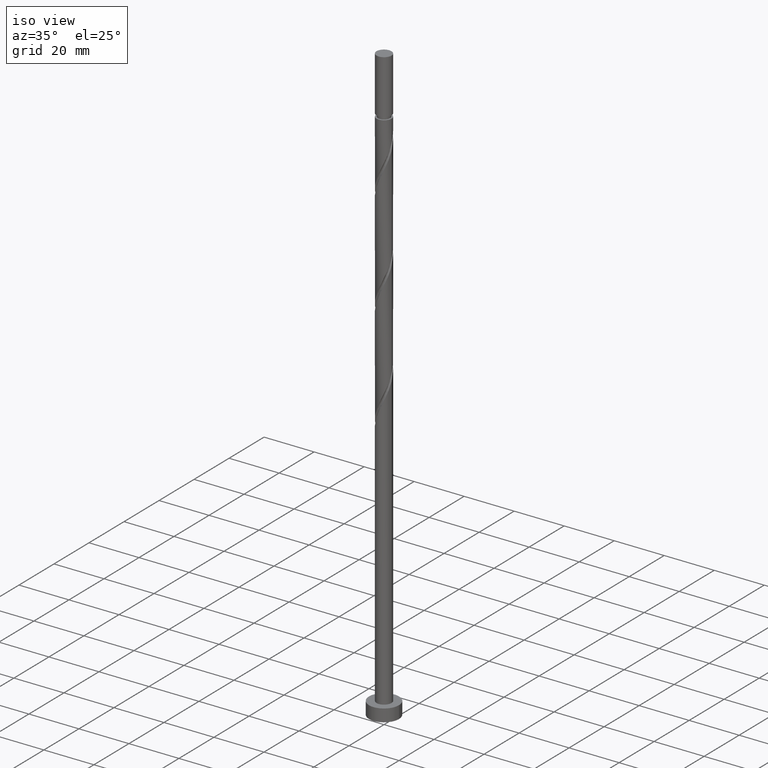
[diagram: clean part render]
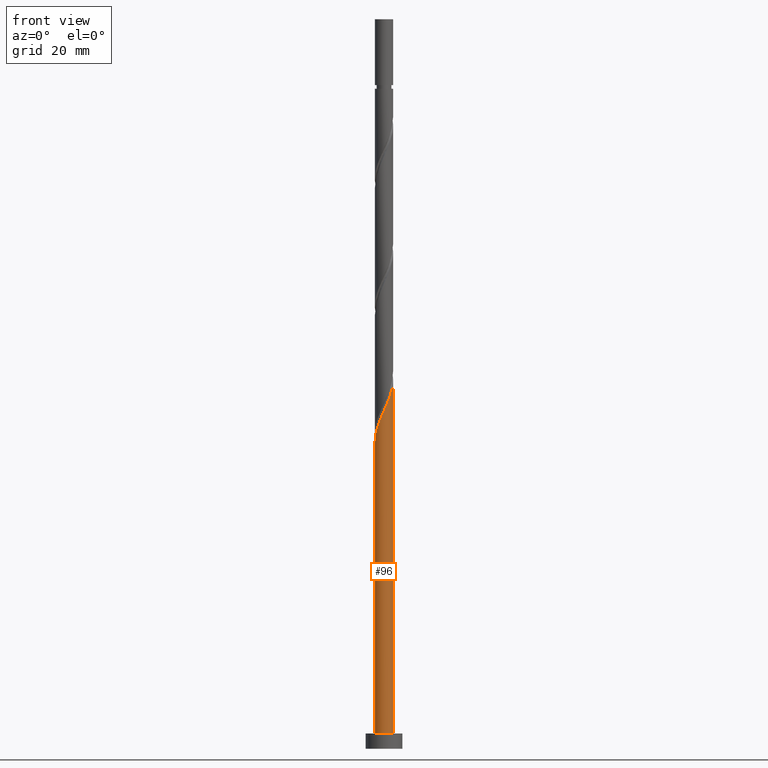
[diagram: tour spotlight — one face highlighted and labeled with its STEP entity id]
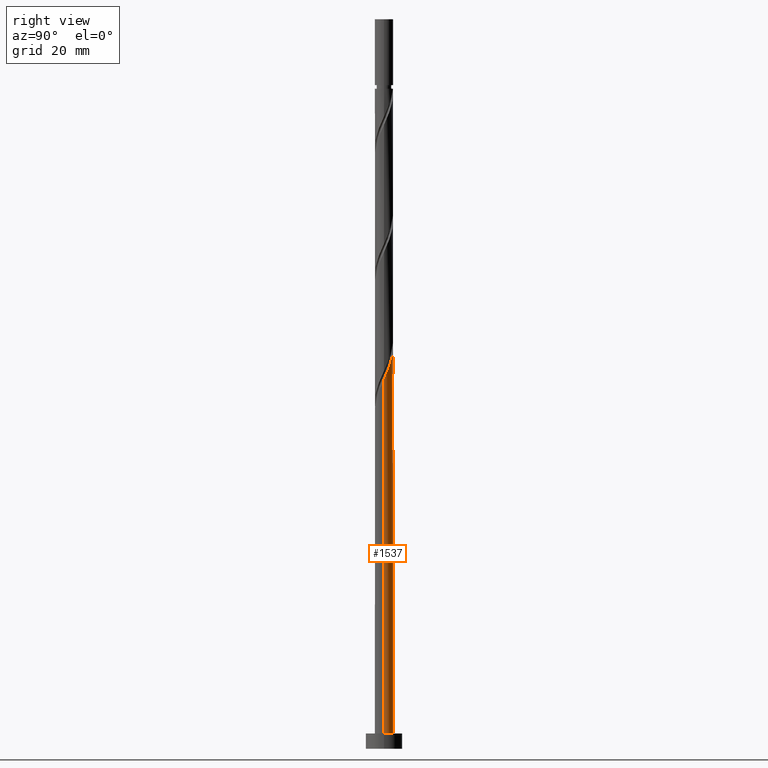
[diagram: tour spotlight — one face highlighted and labeled with its STEP entity id]
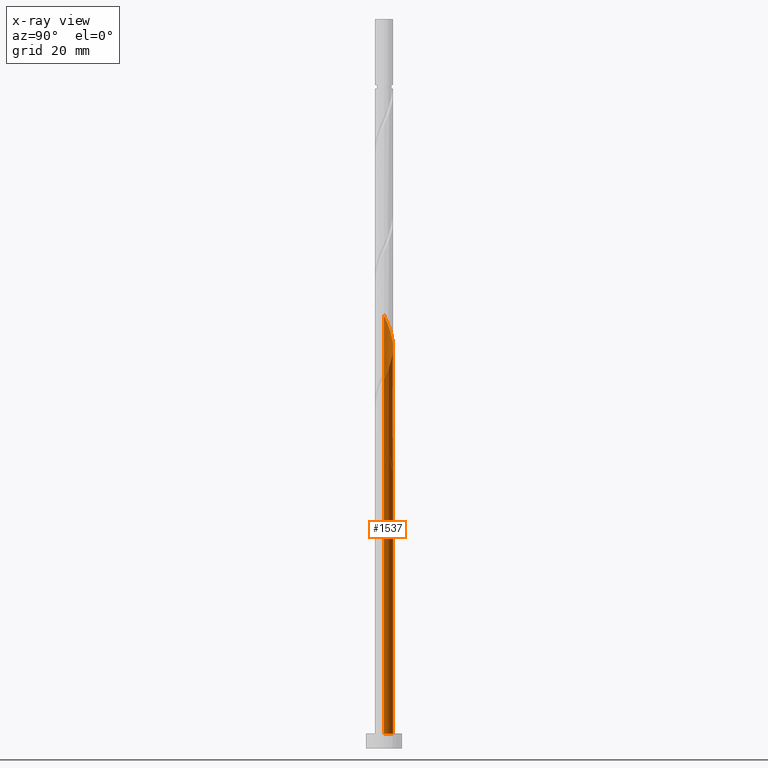
[diagram: x-ray of the same camera — body ghosted, this tour face saturated]
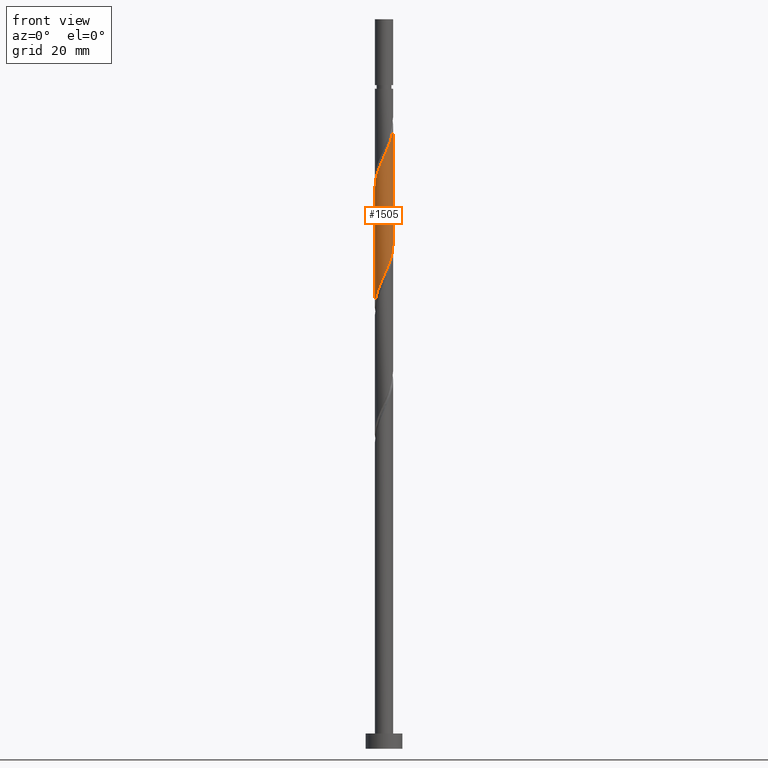
[diagram: tour spotlight — one face highlighted and labeled with its STEP entity id]
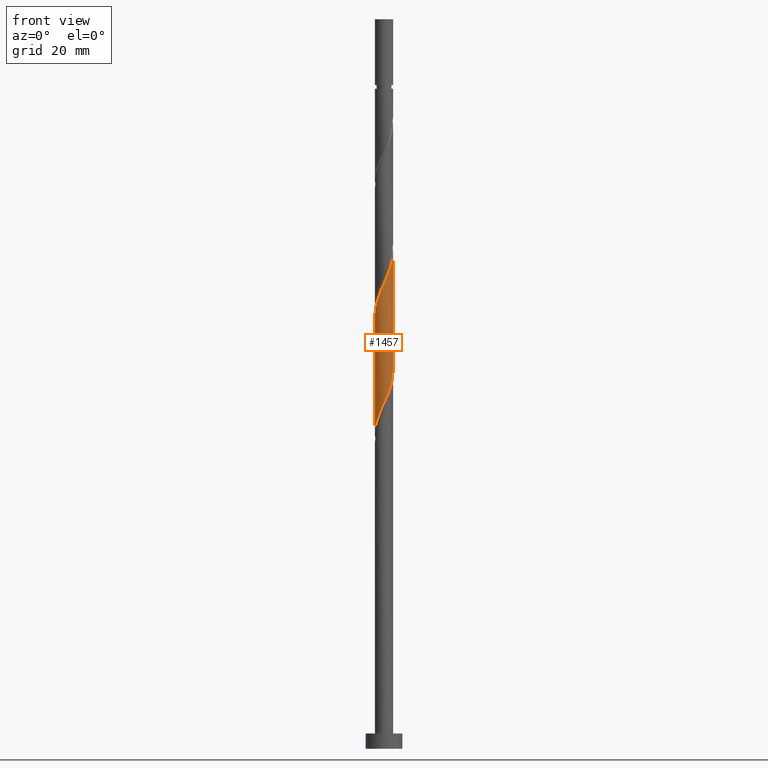
[diagram: tour spotlight — one face highlighted and labeled with its STEP entity id]
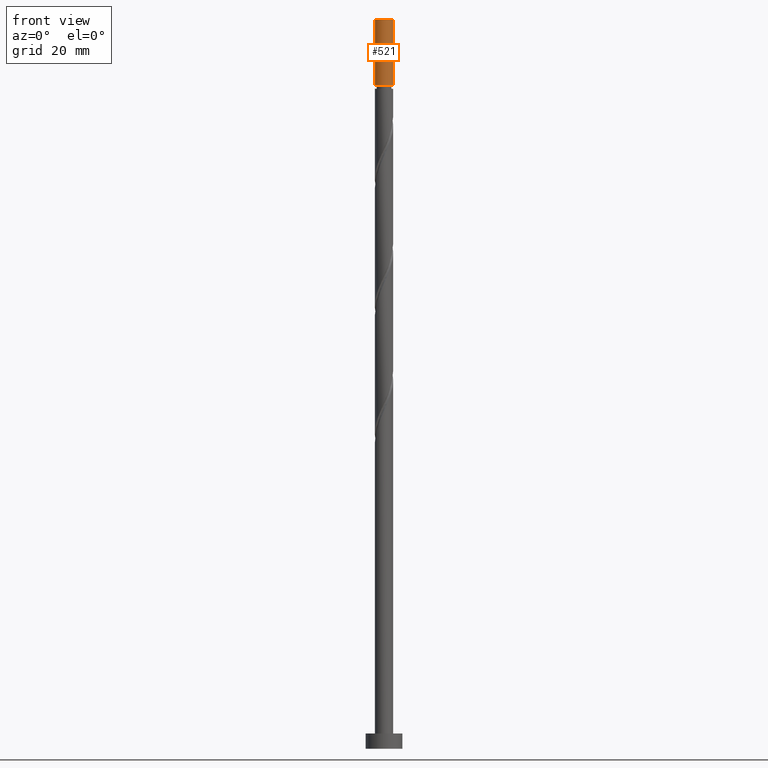
[diagram: tour spotlight — one face highlighted and labeled with its STEP entity id]
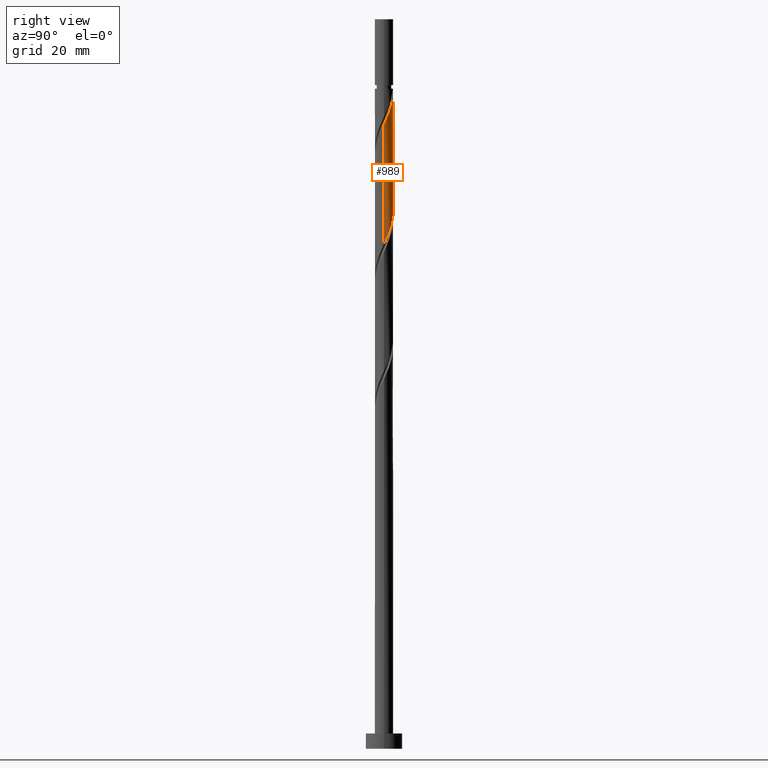
[diagram: tour spotlight — one face highlighted and labeled with its STEP entity id]
A machine part: a face-by-face anatomy tour. The part has 21 B-rep faces; the first image is the clean iso view, then the 6 largest visible faces are spotlighted one at a time (largest first), each with its STEP entity span.

Face 1 — front view, entity #96. In plain terms, the highlighted cylindrical surface (edge-blend (fillet) strip) has radius 3 mm, axis along (-0, -0, -1).
Definition (entity closure, byte-faithful):
#19 = CARTESIAN_POINT ( 'NONE',  ( -2.342886767063572240, -1.908814102736323681, 104.8262157334918925 ) ) ;
#43 = EDGE_CURVE ( 'NONE', #968, #911, #1792, .T. ) ;
#96 = ADVANCED_FACE ( 'NONE', ( #1783 ), #1767, .T. ) ;
#146 = CARTESIAN_POINT ( 'NONE',  ( 0.5969924622639735112, -2.940000000000005276, 112.0377541950303737 ) ) ;
#156 = CARTESIAN_POINT ( 'NONE',  ( 1.283232999305656596, -2.711699295551230460, 113.6403182975944333 ) ) ;
#164 = CARTESIAN_POINT ( 'NONE',  ( -0.8376755528275002805, -2.880676946169974606, 108.8326259899021835 ) ) ;
#172 = CARTESIAN_POINT ( 'NONE',  ( 2.960644198141486605, -0.4843407189274823166, 120.0505747078508563 ) ) ;
#195 = ORIENTED_EDGE ( 'NONE', *, *, #1403, .T. ) ;
#221 = CARTESIAN_POINT ( 'NONE',  ( -3.000000000000005329, 6.834863909711972763E-15, 100.2931656524717852 ) ) ;
#235 = CARTESIAN_POINT ( 'NONE',  ( 0.000000000000000000, 0.000000000000000000, 239.0000000000000284 ) ) ;
#294 = VERTEX_POINT ( 'NONE', #439 ) ;
#319 = CARTESIAN_POINT ( 'NONE',  ( -2.731615850633953624, -1.292657931028938112, 103.2236516309277619 ) ) ;
#418 = CARTESIAN_POINT ( 'NONE',  ( 2.615571287713477577, -1.513762372691147329, 117.6467285540046959 ) ) ;
#439 = CARTESIAN_POINT ( 'NONE',  ( 3.000000000000000444, 3.673940397442060361E-16, 5.000000000000000000 ) ) ;
#449 = AXIS2_PLACEMENT_3D ( 'NONE', #235, #1238, #1061 ) ;
#500 = CARTESIAN_POINT ( 'NONE',  ( 0.000000000000000000, 0.000000000000000000, 5.000000000000000000 ) ) ;
#569 = CARTESIAN_POINT ( 'NONE',  ( 0.9539730929374196089, -2.867511991263171911, 112.8390362463124177 ) ) ;
#578 = CARTESIAN_POINT ( 'NONE',  ( -0.1239431067051856017, -2.997438590913965140, 110.4351900924662431 ) ) ;
#586 = CARTESIAN_POINT ( 'NONE',  ( 2.396435889809655162, -1.804742371096837550, 116.8454465027226519 ) ) ;
#598 = EDGE_LOOP ( 'NONE', ( #1623, #1132, #936, #195 ) ) ;
#720 = CARTESIAN_POINT ( 'NONE',  ( 3.000000000000005329, -0.2437693156111322701, 120.5867982484568159 ) ) ;
#739 = CARTESIAN_POINT ( 'NONE',  ( -2.846604600309532884, -0.9470175550097441608, 102.4223695796457463 ) ) ;
#748 = CARTESIAN_POINT ( 'NONE',  ( 3.000000000000004885, 1.136651328529780996E-15, 121.1264989858051422 ) ) ;
#810 = VECTOR ( 'NONE', #1450, 1000.000000000000000 ) ;
#840 = EDGE_CURVE ( 'NONE', #1385, #294, #1039, .T. ) ;
#858 = CARTESIAN_POINT ( 'NONE',  ( -2.537251308848762488, -1.600736016882631008, 104.0249336822098627 ) ) ;
#867 = CARTESIAN_POINT ( 'NONE',  ( -2.080442193850960297, -2.161425519892979263, 105.6274977847739507 ) ) ;
#876 = CARTESIAN_POINT ( 'NONE',  ( -1.187453060654103387, -2.778964719248856241, 108.0313439386201111 ) ) ;
#883 = CARTESIAN_POINT ( 'NONE',  ( 2.901834587494014350, -0.8438280090813018441, 119.2492926565688123 ) ) ;
#892 = CARTESIAN_POINT ( 'NONE',  ( -3.000000000000000444, 0.000000000000000000, 5.000000000000000000 ) ) ;
#911 = VERTEX_POINT ( 'NONE', #892 ) ;
#936 = ORIENTED_EDGE ( 'NONE', *, *, #43, .T. ) ;
#958 = AXIS2_PLACEMENT_3D ( 'NONE', #500, #1639, #1624 ) ;
#968 = VERTEX_POINT ( 'NONE', #221 ) ;
#988 = VECTOR ( 'NONE', #1518, 1000.000000000000000 ) ;
#1039 = LINE ( 'NONE', #1606, #810 ) ;
#1061 = DIRECTION ( 'NONE',  ( -1.000000000000000000, 0.000000000000000000, 0.000000000000000000 ) ) ;
#1127 = CARTESIAN_POINT ( 'NONE',  ( -3.000000000000005329, 6.834863909711972763E-15, 100.2931656524717710 ) ) ;
#1132 = ORIENTED_EDGE ( 'NONE', *, *, #1227, .F. ) ;
#1139 = CARTESIAN_POINT ( 'NONE',  ( 1.612492905673893029, -2.555886599839287232, 114.4416003488765199 ) ) ;
#1158 = CARTESIAN_POINT ( 'NONE',  ( 0.2400118315905258592, -3.012488008736836864, 111.2364721437482871 ) ) ;
#1227 = EDGE_CURVE ( 'NONE', #968, #1385, #1247, .T. ) ;
#1238 = DIRECTION ( 'NONE',  ( -0.000000000000000000, -0.000000000000000000, -1.000000000000000000 ) ) ;
#1247 =( BOUNDED_CURVE ( )  B_SPLINE_CURVE ( 2, ( #1127, #1578, #1432, #1596, #739, #319, #858, #19, #867, #1440, #1568, #876, #164, #1456, #578, #1158, #146, #569, #156, #1139, #1585, #1448, #586, #418, #1722, #883, #172, #720, #748 ),
 .UNSPECIFIED., .F., .T. ) 
 B_SPLINE_CURVE_WITH_KNOTS ( ( 3, 2, 2, 2, 2, 2, 2, 2, 2, 2, 2, 2, 2, 2, 3 ),
 ( 0.05452716259738322330, 0.05769230769230770939, 0.06730769230769229061, 0.07692307692307687184, 0.08653846153846156408, 0.09615384615384614531, 0.1057692307692307265, 0.1153846153846154188, 0.1250000000000000000, 0.1346153846153845812, 0.1442307692307692735, 0.1538461538461538547, 0.1634615384615384359, 0.1730769230769231282, 0.1795271625973834384 ),
 .UNSPECIFIED. ) 
 CURVE ( )  GEOMETRIC_REPRESENTATION_ITEM ( )  RATIONAL_B_SPLINE_CURVE ( ( 0.9061636035682887336, 0.9069090390690774939, 0.9090909090909340406, 0.9024626128164375816, 0.9090909090909340406, 0.9024626128164375816, 0.9090909090909340406, 0.9024626128164375816, 0.9090909090909340406, 0.9024626128164375816, 0.9090909090909340406, 0.9024626128164375816, 0.9090909090909340406, 0.9024626128164375816, 0.9090909090909340406, 0.9024626128164375816, 0.9090909090909340406, 0.9024626128164375816, 0.9090909090909340406, 0.9024626128164375816, 0.9090909090909340406, 0.9024626128164375816, 0.9090909090909340406, 0.9024626128164375816, 0.9090909090909340406, 0.9024626128164375816, 0.9090909090909340406, 0.9046444828382940173, 0.9061636035682889556 ) ) 
 REPRESENTATION_ITEM ( '' )  );
#1331 = CARTESIAN_POINT ( 'NONE',  ( 3.000000000000004885, 1.136651328529780996E-15, 121.1264989858051422 ) ) ;
#1378 = CARTESIAN_POINT ( 'NONE',  ( -3.000000000000000444, 0.000000000000000000, 239.0000000000000284 ) ) ;
#1385 = VERTEX_POINT ( 'NONE', #1331 ) ;
#1403 = EDGE_CURVE ( 'NONE', #911, #294, #1498, .T. ) ;
#1432 = CARTESIAN_POINT ( 'NONE',  ( -2.990523579387033948, -0.2382618751084434883, 100.8198054770816299 ) ) ;
#1440 = CARTESIAN_POINT ( 'NONE',  ( -1.817997620638349909, -2.414036937049632403, 106.4287798360559805 ) ) ;
#1448 = CARTESIAN_POINT ( 'NONE',  ( 2.177300491905832747, -2.095722369502527993, 116.0441644514406221 ) ) ;
#1450 = DIRECTION ( 'NONE',  ( -0.000000000000000000, -0.000000000000000000, -1.000000000000000000 ) ) ;
#1456 = CARTESIAN_POINT ( 'NONE',  ( -0.4878980450008971737, -2.982389173091093859, 109.6339080411841707 ) ) ;
#1498 = CIRCLE ( 'NONE', #958, 3.000000000000000444 ) ;
#1518 = DIRECTION ( 'NONE',  ( -0.000000000000000000, -0.000000000000000000, -1.000000000000000000 ) ) ;
#1568 = CARTESIAN_POINT ( 'NONE',  ( -1.502725340646227314, -2.596500828149243656, 107.2300618873380387 ) ) ;
#1578 = CARTESIAN_POINT ( 'NONE',  ( -3.000000000000005329, -0.1193193910103015065, 100.5573365681047733 ) ) ;
#1585 = CARTESIAN_POINT ( 'NONE',  ( 1.894896698789863443, -2.325804484670908501, 115.2428824001585497 ) ) ;
#1596 = CARTESIAN_POINT ( 'NONE',  ( -2.961593349985112145, -0.6013771789905506537, 101.6210875283636881 ) ) ;
#1606 = CARTESIAN_POINT ( 'NONE',  ( 3.000000000000000444, 3.673940397442060361E-16, 239.0000000000000284 ) ) ;
#1623 = ORIENTED_EDGE ( 'NONE', *, *, #840, .F. ) ;
#1624 = DIRECTION ( 'NONE',  ( 1.000000000000000000, 0.000000000000000000, 0.000000000000000000 ) ) ;
#1639 = DIRECTION ( 'NONE',  ( 0.000000000000000000, 0.000000000000000000, 1.000000000000000000 ) ) ;
#1722 = CARTESIAN_POINT ( 'NONE',  ( 2.758702937603747074, -1.178795190886223754, 118.4480106052867399 ) ) ;
#1767 = CYLINDRICAL_SURFACE ( 'NONE', #449, 3.000000000000000444 ) ;
#1783 = FACE_OUTER_BOUND ( 'NONE', #598, .T. ) ;
#1792 = LINE ( 'NONE', #1378, #988 ) ;

Face 2 — right view, entity #1537. An x-ray twin of the same camera follows (body ghosted, this face saturated) — the face is partly hidden behind the body. In plain terms, the highlighted cylindrical surface (edge-blend (fillet) strip) has radius 3 mm, axis along (-0, -0, -1).
Definition (entity closure, byte-faithful):
#23 = CARTESIAN_POINT ( 'NONE',  ( -3.000000000000004441, 0.2437693156111404302, 99.75346491512348734 ) ) ;
#43 = EDGE_CURVE ( 'NONE', #968, #911, #1792, .T. ) ;
#47 = CARTESIAN_POINT ( 'NONE',  ( 2.080442193850960741, 2.161425519892978375, 126.4608311181072651 ) ) ;
#54 = CARTESIAN_POINT ( 'NONE',  ( -2.990523579387028619, 0.2382618751084444875, 102.4223695796457037 ) ) ;
#63 = CARTESIAN_POINT ( 'NONE',  ( -2.731615850633949183, 1.292657931028937224, 100.0185234257995717 ) ) ;
#72 = CARTESIAN_POINT ( 'NONE',  ( -1.502725340646223096, 2.596500828149240103, 96.01211316938930906 ) ) ;
#160 = CARTESIAN_POINT ( 'NONE',  ( -2.960644198141485717, 0.4843407189274820390, 99.21724137451754189 ) ) ;
#202 = CARTESIAN_POINT ( 'NONE',  ( 1.187453060654103831, 2.778964719248856241, 128.8646772719534113 ) ) ;
#211 = CARTESIAN_POINT ( 'NONE',  ( 0.2400118315905273025, 3.012488008736832867, 92.00570291297907488 ) ) ;
#221 = CARTESIAN_POINT ( 'NONE',  ( -3.000000000000005329, 6.834863909711972763E-15, 100.2931656524717852 ) ) ;
#241 = ORIENTED_EDGE ( 'NONE', *, *, #794, .T. ) ;
#274 = CIRCLE ( 'NONE', #1108, 3.000000000000000444 ) ;
#294 = VERTEX_POINT ( 'NONE', #439 ) ;
#305 = CARTESIAN_POINT ( 'NONE',  ( -2.615571287713478021, 1.513762372691146441, 96.81339522067135306 ) ) ;
#331 = CARTESIAN_POINT ( 'NONE',  ( -2.901834587494014794, 0.8438280090813001788, 140.0826259899020840 ) ) ;
#333 = CARTESIAN_POINT ( 'NONE',  ( -3.000000000000005329, 6.834863909711972763E-15, 100.2931656524717710 ) ) ;
#338 = CARTESIAN_POINT ( 'NONE',  ( 2.846604600309534217, 0.9470175550097427175, 123.2557029129790465 ) ) ;
#346 = CARTESIAN_POINT ( 'NONE',  ( 1.817997620638351242, 2.414036937049631959, 127.2621131693893091 ) ) ;
#350 = EDGE_CURVE ( 'NONE', #1638, #968, #649, .T. ) ;
#355 = CARTESIAN_POINT ( 'NONE',  ( -1.283232999305656818, 2.711699295551230016, 134.4736516309278045 ) ) ;
#364 = CARTESIAN_POINT ( 'NONE',  ( 3.000000000000004885, 1.136651328529780996E-15, 121.1264989858051422 ) ) ;
#387 = DIRECTION ( 'NONE',  ( -1.000000000000000000, 0.000000000000000000, 0.000000000000000000 ) ) ;
#437 = DIRECTION ( 'NONE',  ( 0.000000000000000000, -0.000000000000000000, -1.000000000000000000 ) ) ;
#439 = CARTESIAN_POINT ( 'NONE',  ( 3.000000000000000444, 3.673940397442060361E-16, 5.000000000000000000 ) ) ;
#461 = ORIENTED_EDGE ( 'NONE', *, *, #43, .F. ) ;
#463 = CARTESIAN_POINT ( 'NONE',  ( 0.5969924622639739553, 2.939999999999999503, 91.20442086169700247 ) ) ;
#491 = ORIENTED_EDGE ( 'NONE', *, *, #893, .F. ) ;
#493 = CARTESIAN_POINT ( 'NONE',  ( -0.8376755528274979490, 2.880676946169971497, 94.40954906682519265 ) ) ;
#502 = CARTESIAN_POINT ( 'NONE',  ( 2.731615850633953624, 1.292657931028937224, 124.0569849642611047 ) ) ;
#511 = CARTESIAN_POINT ( 'NONE',  ( 1.502725340646227759, 2.596500828149243656, 128.0633952206713957 ) ) ;
#539 = CARTESIAN_POINT ( 'NONE',  ( -0.5969924622639729561, 2.940000000000004832, 91.20442086169700247 ) ) ;
#602 = EDGE_CURVE ( 'NONE', #294, #911, #783, .T. ) ;
#607 = LINE ( 'NONE', #1611, #1199 ) ;
#617 = CARTESIAN_POINT ( 'NONE',  ( -2.615571287713478021, 1.513762372691146441, 138.4800618873380245 ) ) ;
#626 = CARTESIAN_POINT ( 'NONE',  ( -0.2400118315905254429, 3.012488008736836864, 132.0698054770816441 ) ) ;
#636 = CARTESIAN_POINT ( 'NONE',  ( -2.342886767063568687, 1.908814102736322127, 98.41595932323546947 ) ) ;
#645 = CARTESIAN_POINT ( 'NONE',  ( -2.396435889809656050, 1.804742371096836884, 137.6787798360560373 ) ) ;
#649 =( BOUNDED_CURVE ( )  B_SPLINE_CURVE ( 2, ( #1144, #1013, #1452, #744, #1582, #1573, #1608, #305, #871, #1445, #160, #23, #333 ),
 .UNSPECIFIED., .F., .T. ) 
 B_SPLINE_CURVE_WITH_KNOTS ( ( 3, 2, 2, 2, 2, 2, 3 ),
 ( 0.000000000000000000, 0.009615384615384581224, 0.01923076923076927347, 0.02884615384615385469, 0.03846153846153843592, 0.04807692307692312816, 0.05452716259738322330 ),
 .UNSPECIFIED. ) 
 CURVE ( )  GEOMETRIC_REPRESENTATION_ITEM ( )  RATIONAL_B_SPLINE_CURVE ( ( 0.9090909090909340406, 0.9024626128164375816, 0.9090909090909340406, 0.9024626128164375816, 0.9090909090909340406, 0.9024626128164375816, 0.9090909090909340406, 0.9024626128164375816, 0.9090909090909340406, 0.9024626128164375816, 0.9090909090909340406, 0.9046444828382941283, 0.9061636035682887336 ) ) 
 REPRESENTATION_ITEM ( '' )  );
#650 = ORIENTED_EDGE ( 'NONE', *, *, #1285, .F. ) ;
#653 = CARTESIAN_POINT ( 'NONE',  ( 2.961593349985112145, 0.6013771789905504317, 122.4544208616970025 ) ) ;
#656 = VERTEX_POINT ( 'NONE', #860 ) ;
#744 = CARTESIAN_POINT ( 'NONE',  ( -1.612492905673894583, 2.555886599839287232, 93.60826701554316287 ) ) ;
#750 = CARTESIAN_POINT ( 'NONE',  ( 0.000000000000000000, 0.000000000000000000, 91.20442086169700247 ) ) ;
#758 = CARTESIAN_POINT ( 'NONE',  ( -0.5969924622639729561, 2.940000000000005276, 132.8710875283637165 ) ) ;
#768 = CARTESIAN_POINT ( 'NONE',  ( -2.999999999999999556, 0.1193193910103105826, 102.6848384886225602 ) ) ;
#777 = CARTESIAN_POINT ( 'NONE',  ( -0.9539730929374202750, 2.867511991263171911, 133.6723695796457321 ) ) ;
#783 = CIRCLE ( 'NONE', #1556, 3.000000000000000444 ) ;
#785 = CARTESIAN_POINT ( 'NONE',  ( -1.612492905673894583, 2.555886599839287232, 135.2749336822098201 ) ) ;
#794 = EDGE_CURVE ( 'NONE', #1638, #1356, #274, .T. ) ;
#810 = VECTOR ( 'NONE', #1450, 1000.000000000000000 ) ;
#840 = EDGE_CURVE ( 'NONE', #1385, #294, #1039, .T. ) ;
#860 = CARTESIAN_POINT ( 'NONE',  ( -3.000000000000000888, 1.105243857609885923E-14, 102.9490094042555057 ) ) ;
#869 = DIRECTION ( 'NONE',  ( -1.000000000000000000, 0.000000000000000000, 0.000000000000000000 ) ) ;
#871 = CARTESIAN_POINT ( 'NONE',  ( -2.758702937603747074, 1.178795190886223754, 97.61467727195342547 ) ) ;
#892 = CARTESIAN_POINT ( 'NONE',  ( -3.000000000000000444, 0.000000000000000000, 5.000000000000000000 ) ) ;
#893 = EDGE_CURVE ( 'NONE', #1385, #1355, #1306, .T. ) ;
#902 = EDGE_LOOP ( 'NONE', ( #491, #1569, #1131, #461, #1106, #241, #1747, #650 ) ) ;
#904 = CARTESIAN_POINT ( 'NONE',  ( -2.537251308848757603, 1.600736016882629231, 99.21724137451748504 ) ) ;
#911 = VERTEX_POINT ( 'NONE', #892 ) ;
#921 = CARTESIAN_POINT ( 'NONE',  ( 0.4878980450008973957, 2.982389173091093859, 130.4672413745175277 ) ) ;
#931 = CARTESIAN_POINT ( 'NONE',  ( 0.5969924622639739553, 2.939999999999999503, 91.20442086169700247 ) ) ;
#951 = EDGE_CURVE ( 'NONE', #656, #1356, #1032, .T. ) ;
#968 = VERTEX_POINT ( 'NONE', #221 ) ;
#988 = VECTOR ( 'NONE', #1518, 1000.000000000000000 ) ;
#992 = DIRECTION ( 'NONE',  ( 0.000000000000000000, 0.000000000000000000, 1.000000000000000000 ) ) ;
#1013 = CARTESIAN_POINT ( 'NONE',  ( -0.9539730929374202750, 2.867511991263171911, 92.00570291297906067 ) ) ;
#1032 =( BOUNDED_CURVE ( )  B_SPLINE_CURVE ( 2, ( #1752, #768, #54, #1770, #1496, #63, #904, #636, #1056, #1626, #72, #1204, #493, #1635, #1073, #211, #931 ),
 .UNSPECIFIED., .F., .T. ) 
 B_SPLINE_CURVE_WITH_KNOTS ( ( 3, 2, 2, 2, 2, 2, 2, 2, 3 ),
 ( 0.9295271625973834384, 0.9326923076923077094, 0.9423076923076922906, 0.9519230769230768718, 0.9615384615384615641, 0.9711538461538461453, 0.9807692307692307265, 0.9903846153846154188, 1.000000000000000000 ),
 .UNSPECIFIED. ) 
 CURVE ( )  GEOMETRIC_REPRESENTATION_ITEM ( )  RATIONAL_B_SPLINE_CURVE ( ( 0.9061636035682835155, 0.9069090390690721648, 0.9090909090909286006, 0.9024626128164319194, 0.9090909090909286006, 0.9024626128164319194, 0.9090909090909286006, 0.9024626128164319194, 0.9090909090909286006, 0.9024626128164319194, 0.9090909090909286006, 0.9024626128164319194, 0.9090909090909286006, 0.9024626128164319194, 0.9090909090909286006, 0.9024626128164319194, 0.9090909090909286006 ) ) 
 REPRESENTATION_ITEM ( '' )  );
#1039 = LINE ( 'NONE', #1606, #810 ) ;
#1044 = CARTESIAN_POINT ( 'NONE',  ( -3.000000000000005329, -1.555417607461805698E-15, 141.9598323191384850 ) ) ;
#1056 = CARTESIAN_POINT ( 'NONE',  ( -2.080442193850956301, 2.161425519892975711, 97.61467727195341126 ) ) ;
#1064 = CARTESIAN_POINT ( 'NONE',  ( 2.342886767063572240, 1.908814102736323015, 125.6595490668252211 ) ) ;
#1073 = CARTESIAN_POINT ( 'NONE',  ( -0.1239431067051839225, 2.997438590913960699, 92.80698496426107624 ) ) ;
#1098 = FACE_OUTER_BOUND ( 'NONE', #902, .T. ) ;
#1106 = ORIENTED_EDGE ( 'NONE', *, *, #350, .F. ) ;
#1108 = AXIS2_PLACEMENT_3D ( 'NONE', #750, #437, #869 ) ;
#1131 = ORIENTED_EDGE ( 'NONE', *, *, #602, .T. ) ;
#1144 = CARTESIAN_POINT ( 'NONE',  ( -0.5969924622639729561, 2.940000000000004832, 91.20442086169700247 ) ) ;
#1196 = CARTESIAN_POINT ( 'NONE',  ( -2.758702937603747074, 1.178795190886223754, 139.2813439386200685 ) ) ;
#1199 = VECTOR ( 'NONE', #1502, 1000.000000000000000 ) ;
#1204 = CARTESIAN_POINT ( 'NONE',  ( -1.187453060654100945, 2.778964719248853132, 95.21083111810726507 ) ) ;
#1213 = CARTESIAN_POINT ( 'NONE',  ( -1.894896698789863443, 2.325804484670908501, 136.0762157334918925 ) ) ;
#1220 = CARTESIAN_POINT ( 'NONE',  ( -2.177300491905833191, 2.095722369502527993, 136.8774977847739365 ) ) ;
#1248 = CARTESIAN_POINT ( 'NONE',  ( 0.000000000000000000, 0.000000000000000000, 239.0000000000000284 ) ) ;
#1285 = EDGE_CURVE ( 'NONE', #1355, #656, #607, .T. ) ;
#1306 =( BOUNDED_CURVE ( )  B_SPLINE_CURVE ( 2, ( #364, #1466, #1504, #653, #338, #502, #1342, #1064, #47, #346, #511, #202, #1615, #921, #1478, #626, #758, #777, #355, #785, #1213, #1220, #645, #617, #1196, #331, #1333, #1777, #1326 ),
 .UNSPECIFIED., .F., .T. ) 
 B_SPLINE_CURVE_WITH_KNOTS ( ( 3, 2, 2, 2, 2, 2, 2, 2, 2, 2, 2, 2, 2, 2, 3 ),
 ( 0.1795271625973834384, 0.1826923076923077094, 0.1923076923076922906, 0.2019230769230768718, 0.2115384615384615641, 0.2211538461538461453, 0.2307692307692307265, 0.2403846153846154188, 0.2500000000000000000, 0.2596153846153845812, 0.2692307692307692735, 0.2788461538461538547, 0.2884615384615384359, 0.2980769230769231282, 0.3045271625973834939 ),
 .UNSPECIFIED. ) 
 CURVE ( )  GEOMETRIC_REPRESENTATION_ITEM ( )  RATIONAL_B_SPLINE_CURVE ( ( 0.9061636035682889556, 0.9069090390690774939, 0.9090909090909340406, 0.9024626128164375816, 0.9090909090909340406, 0.9024626128164375816, 0.9090909090909340406, 0.9024626128164375816, 0.9090909090909340406, 0.9024626128164375816, 0.9090909090909340406, 0.9024626128164375816, 0.9090909090909340406, 0.9024626128164375816, 0.9090909090909340406, 0.9024626128164375816, 0.9090909090909340406, 0.9024626128164375816, 0.9090909090909340406, 0.9024626128164375816, 0.9090909090909340406, 0.9024626128164375816, 0.9090909090909340406, 0.9024626128164375816, 0.9090909090909340406, 0.9024626128164375816, 0.9090909090909340406, 0.9046444828382939063, 0.9061636035682889556 ) ) 
 REPRESENTATION_ITEM ( '' )  );
#1326 = CARTESIAN_POINT ( 'NONE',  ( -3.000000000000005329, -1.555417607461805698E-15, 141.9598323191385134 ) ) ;
#1331 = CARTESIAN_POINT ( 'NONE',  ( 3.000000000000004885, 1.136651328529780996E-15, 121.1264989858051422 ) ) ;
#1333 = CARTESIAN_POINT ( 'NONE',  ( -2.960644198141485717, 0.4843407189274820390, 140.8839080411841849 ) ) ;
#1342 = CARTESIAN_POINT ( 'NONE',  ( 2.537251308848762488, 1.600736016882631674, 124.8582670155432055 ) ) ;
#1345 = AXIS2_PLACEMENT_3D ( 'NONE', #1248, #1529, #387 ) ;
#1355 = VERTEX_POINT ( 'NONE', #1044 ) ;
#1356 = VERTEX_POINT ( 'NONE', #463 ) ;
#1378 = CARTESIAN_POINT ( 'NONE',  ( -3.000000000000000444, 0.000000000000000000, 239.0000000000000284 ) ) ;
#1385 = VERTEX_POINT ( 'NONE', #1331 ) ;
#1398 = CYLINDRICAL_SURFACE ( 'NONE', #1345, 3.000000000000000444 ) ;
#1445 = CARTESIAN_POINT ( 'NONE',  ( -2.901834587494014794, 0.8438280090813001788, 98.41595932323546947 ) ) ;
#1450 = DIRECTION ( 'NONE',  ( -0.000000000000000000, -0.000000000000000000, -1.000000000000000000 ) ) ;
#1452 = CARTESIAN_POINT ( 'NONE',  ( -1.283232999305656818, 2.711699295551230016, 92.80698496426110466 ) ) ;
#1466 = CARTESIAN_POINT ( 'NONE',  ( 3.000000000000004885, 0.1193193910103089450, 121.3906699014381303 ) ) ;
#1478 = CARTESIAN_POINT ( 'NONE',  ( 0.1239431067051873087, 2.997438590913965140, 131.2685234257996001 ) ) ;
#1496 = CARTESIAN_POINT ( 'NONE',  ( -2.846604600309527111, 0.9470175550097439388, 100.8198054770815872 ) ) ;
#1502 = DIRECTION ( 'NONE',  ( -0.000000000000000000, -0.000000000000000000, -1.000000000000000000 ) ) ;
#1504 = CARTESIAN_POINT ( 'NONE',  ( 2.990523579387033948, 0.2382618751084424058, 121.6531388104149443 ) ) ;
#1518 = DIRECTION ( 'NONE',  ( -0.000000000000000000, -0.000000000000000000, -1.000000000000000000 ) ) ;
#1529 = DIRECTION ( 'NONE',  ( -0.000000000000000000, -0.000000000000000000, -1.000000000000000000 ) ) ;
#1537 = ADVANCED_FACE ( 'NONE', ( #1098 ), #1398, .T. ) ;
#1556 = AXIS2_PLACEMENT_3D ( 'NONE', #1814, #992, #1663 ) ;
#1569 = ORIENTED_EDGE ( 'NONE', *, *, #840, .T. ) ;
#1573 = CARTESIAN_POINT ( 'NONE',  ( -2.177300491905833191, 2.095722369502527993, 95.21083111810725086 ) ) ;
#1582 = CARTESIAN_POINT ( 'NONE',  ( -1.894896698789863443, 2.325804484670908501, 94.40954906682522108 ) ) ;
#1606 = CARTESIAN_POINT ( 'NONE',  ( 3.000000000000000444, 3.673940397442060361E-16, 239.0000000000000284 ) ) ;
#1608 = CARTESIAN_POINT ( 'NONE',  ( -2.396435889809656050, 1.804742371096836884, 96.01211316938938012 ) ) ;
#1611 = CARTESIAN_POINT ( 'NONE',  ( -3.000000000000000444, 0.000000000000000000, 239.0000000000000284 ) ) ;
#1615 = CARTESIAN_POINT ( 'NONE',  ( 0.8376755528275017237, 2.880676946169974162, 129.6659593232354837 ) ) ;
#1626 = CARTESIAN_POINT ( 'NONE',  ( -1.817997620638346579, 2.414036937049630627, 96.81339522067136727 ) ) ;
#1635 = CARTESIAN_POINT ( 'NONE',  ( -0.4878980450008948422, 2.982389173091089418, 93.60826701554317708 ) ) ;
#1638 = VERTEX_POINT ( 'NONE', #539 ) ;
#1663 = DIRECTION ( 'NONE',  ( 1.000000000000000000, 0.000000000000000000, 0.000000000000000000 ) ) ;
#1747 = ORIENTED_EDGE ( 'NONE', *, *, #951, .F. ) ;
#1752 = CARTESIAN_POINT ( 'NONE',  ( -3.000000000000000888, 1.105243857609885923E-14, 102.9490094042555199 ) ) ;
#1770 = CARTESIAN_POINT ( 'NONE',  ( -2.961593349985107704, 0.6013771789905506537, 101.6210875283636881 ) ) ;
#1777 = CARTESIAN_POINT ( 'NONE',  ( -3.000000000000006661, 0.2437693156111302994, 141.4201315817902014 ) ) ;
#1792 = LINE ( 'NONE', #1378, #988 ) ;
#1814 = CARTESIAN_POINT ( 'NONE',  ( 0.000000000000000000, 0.000000000000000000, 5.000000000000000000 ) ) ;

Face 3 — front view, entity #1505. In plain terms, the highlighted cylindrical surface (edge-blend (fillet) strip) has radius 3 mm, axis along (-0, -0, -1).
Definition (entity closure, byte-faithful):
#14 = CARTESIAN_POINT ( 'NONE',  ( 1.612492905673893029, -2.555886599839287232, 197.7749336822098769 ) ) ;
#21 = LINE ( 'NONE', #609, #182 ) ;
#41 = CARTESIAN_POINT ( 'NONE',  ( -2.342886767063572240, -1.908814102736323681, 188.1595490668252353 ) ) ;
#92 = CARTESIAN_POINT ( 'NONE',  ( -0.2400118315905279132, -3.012488008736832867, 154.5057029129790749 ) ) ;
#98 = FACE_OUTER_BOUND ( 'NONE', #671, .T. ) ;
#120 = CARTESIAN_POINT ( 'NONE',  ( -2.901834587494012130, -0.8438280090812981804, 146.4928824001585212 ) ) ;
#123 = AXIS2_PLACEMENT_3D ( 'NONE', #1819, #530, #1659 ) ;
#182 = VECTOR ( 'NONE', #571, 1000.000000000000000 ) ;
#187 = CARTESIAN_POINT ( 'NONE',  ( 2.177300491905832747, -2.095722369502527993, 199.3774977847739933 ) ) ;
#269 = EDGE_CURVE ( 'NONE', #406, #301, #279, .T. ) ;
#271 = CARTESIAN_POINT ( 'NONE',  ( -0.9539730929374207191, -2.867511991263167914, 152.9031388104149869 ) ) ;
#279 =( BOUNDED_CURVE ( )  B_SPLINE_CURVE ( 2, ( #1041, #887, #295, #1437, #895, #1162, #582, #41, #432, #1745, #1469, #1153, #752, #1591, #1309, #862, #591, #760, #448, #14, #1171, #187, #1319, #1021, #1003, #725, #1328, #1718, #573 ),
 .UNSPECIFIED., .F., .T. ) 
 B_SPLINE_CURVE_WITH_KNOTS ( ( 3, 2, 2, 2, 2, 2, 2, 2, 2, 2, 2, 2, 2, 2, 3 ),
 ( 0.5545271625973835494, 0.5576923076923077094, 0.5673076923076922906, 0.5769230769230768718, 0.5865384615384615641, 0.5961538461538461453, 0.6057692307692308376, 0.6153846153846154188, 0.6250000000000000000, 0.6346153846153845812, 0.6442307692307691624, 0.6538461538461538547, 0.6634615384615384359, 0.6730769230769231282, 0.6795271625973831053 ),
 .UNSPECIFIED. ) 
 CURVE ( )  GEOMETRIC_REPRESENTATION_ITEM ( )  RATIONAL_B_SPLINE_CURVE ( ( 0.9061636035682889556, 0.9069090390690777159, 0.9090909090909340406, 0.9024626128164375816, 0.9090909090909340406, 0.9024626128164375816, 0.9090909090909340406, 0.9024626128164375816, 0.9090909090909340406, 0.9024626128164375816, 0.9090909090909340406, 0.9024626128164375816, 0.9090909090909340406, 0.9024626128164375816, 0.9090909090909340406, 0.9024626128164375816, 0.9090909090909340406, 0.9024626128164375816, 0.9090909090909340406, 0.9024626128164375816, 0.9090909090909340406, 0.9024626128164375816, 0.9090909090909340406, 0.9024626128164375816, 0.9090909090909340406, 0.9024626128164375816, 0.9090909090909340406, 0.9046444828382942394, 0.9061636035682887336 ) ) 
 REPRESENTATION_ITEM ( '' )  );
#283 = CARTESIAN_POINT ( 'NONE',  ( 0.8376755528274976159, -2.880676946169971497, 156.9095490668251784 ) ) ;
#295 = CARTESIAN_POINT ( 'NONE',  ( -2.990523579387033948, -0.2382618751084434883, 184.1531388104150153 ) ) ;
#301 = VERTEX_POINT ( 'NONE', #880 ) ;
#383 = CARTESIAN_POINT ( 'NONE',  ( 1.502725340646222651, -2.596500828149240547, 158.5121131693892949 ) ) ;
#391 = CARTESIAN_POINT ( 'NONE',  ( 2.537251308848757159, -1.600736016882629231, 161.7172413745174424 ) ) ;
#406 = VERTEX_POINT ( 'NONE', #628 ) ;
#412 = CARTESIAN_POINT ( 'NONE',  ( 3.000000000000000444, -0.1193193910103121230, 165.1848384886225460 ) ) ;
#425 = CARTESIAN_POINT ( 'NONE',  ( 3.000000000000000444, 3.673940397442060361E-16, 239.0000000000000284 ) ) ;
#432 = CARTESIAN_POINT ( 'NONE',  ( -2.080442193850960297, -2.161425519892979263, 188.9608311181072509 ) ) ;
#448 = CARTESIAN_POINT ( 'NONE',  ( 1.283232999305656596, -2.711699295551230460, 196.9736516309278045 ) ) ;
#451 = LINE ( 'NONE', #425, #1320 ) ;
#467 =( BOUNDED_CURVE ( )  B_SPLINE_CURVE ( 2, ( #1824, #412, #831, #555, #1523, #980, #391, #972, #677, #563, #383, #1832, #283, #667, #1797, #92, #1690, #271, #1130, #1682, #1102, #963, #1806, #535, #1374, #120, #1533, #1234, #1243 ),
 .UNSPECIFIED., .F., .T. ) 
 B_SPLINE_CURVE_WITH_KNOTS ( ( 3, 2, 2, 2, 2, 2, 2, 2, 2, 2, 2, 2, 2, 2, 3 ),
 ( 0.5545271625973834384, 0.5576923076923077094, 0.5673076923076922906, 0.5769230769230768718, 0.5865384615384615641, 0.5961538461538461453, 0.6057692307692307265, 0.6153846153846154188, 0.6250000000000000000, 0.6346153846153845812, 0.6442307692307692735, 0.6538461538461538547, 0.6634615384615384359, 0.6730769230769231282, 0.6795271625973833274 ),
 .UNSPECIFIED. ) 
 CURVE ( )  GEOMETRIC_REPRESENTATION_ITEM ( )  RATIONAL_B_SPLINE_CURVE ( ( 0.9061636035682835155, 0.9069090390690721648, 0.9090909090909286006, 0.9024626128164319194, 0.9090909090909286006, 0.9024626128164319194, 0.9090909090909286006, 0.9024626128164319194, 0.9090909090909286006, 0.9024626128164319194, 0.9090909090909286006, 0.9024626128164319194, 0.9090909090909286006, 0.9024626128164319194, 0.9090909090909286006, 0.9024626128164319194, 0.9090909090909286006, 0.9024626128164319194, 0.9090909090909286006, 0.9024626128164319194, 0.9090909090909286006, 0.9024626128164319194, 0.9090909090909286006, 0.9024626128164319194, 0.9090909090909286006, 0.9024626128164319194, 0.9090909090909286006, 0.9046444828382885772, 0.9061636035682834045 ) ) 
 REPRESENTATION_ITEM ( '' )  );
#484 = EDGE_CURVE ( 'NONE', #1008, #935, #467, .T. ) ;
#520 = ORIENTED_EDGE ( 'NONE', *, *, #1791, .F. ) ;
#530 = DIRECTION ( 'NONE',  ( -0.000000000000000000, -0.000000000000000000, -1.000000000000000000 ) ) ;
#535 = CARTESIAN_POINT ( 'NONE',  ( -2.615571287713475357, -1.513762372691142666, 148.0954465027226661 ) ) ;
#555 = CARTESIAN_POINT ( 'NONE',  ( 2.961593349985107704, -0.6013771789905509868, 164.1210875283636597 ) ) ;
#563 = CARTESIAN_POINT ( 'NONE',  ( 1.817997620638345690, -2.414036937049630627, 159.3133952206714241 ) ) ;
#571 = DIRECTION ( 'NONE',  ( -0.000000000000000000, -0.000000000000000000, -1.000000000000000000 ) ) ;
#573 = CARTESIAN_POINT ( 'NONE',  ( 3.000000000000004441, -1.660109177194811627E-15, 204.4598323191384850 ) ) ;
#582 = CARTESIAN_POINT ( 'NONE',  ( -2.537251308848762488, -1.600736016882631008, 187.3582670155432197 ) ) ;
#591 = CARTESIAN_POINT ( 'NONE',  ( 0.5969924622639735112, -2.940000000000005276, 195.3710875283636881 ) ) ;
#609 = CARTESIAN_POINT ( 'NONE',  ( -3.000000000000000444, 0.000000000000000000, 239.0000000000000284 ) ) ;
#628 = CARTESIAN_POINT ( 'NONE',  ( -3.000000000000004885, -2.946319891057457926E-15, 183.6264989858051422 ) ) ;
#667 = CARTESIAN_POINT ( 'NONE',  ( 0.4878980450008937875, -2.982389173091089418, 156.1082670155431060 ) ) ;
#670 = ORIENTED_EDGE ( 'NONE', *, *, #740, .T. ) ;
#671 = EDGE_LOOP ( 'NONE', ( #520, #944, #670, #994 ) ) ;
#677 = CARTESIAN_POINT ( 'NONE',  ( 2.080442193850956301, -2.161425519892975711, 160.1146772719533828 ) ) ;
#718 = DIRECTION ( 'NONE',  ( -0.000000000000000000, -0.000000000000000000, -1.000000000000000000 ) ) ;
#725 = CARTESIAN_POINT ( 'NONE',  ( 2.901834587494014350, -0.8438280090813018441, 202.5826259899021977 ) ) ;
#740 = EDGE_CURVE ( 'NONE', #406, #935, #21, .T. ) ;
#752 = CARTESIAN_POINT ( 'NONE',  ( -0.8376755528275002805, -2.880676946169974606, 192.1659593232354837 ) ) ;
#760 = CARTESIAN_POINT ( 'NONE',  ( 0.9539730929374196089, -2.867511991263171911, 196.1723695796457321 ) ) ;
#831 = CARTESIAN_POINT ( 'NONE',  ( 2.990523579387029507, -0.2382618751084462361, 164.9223695796457321 ) ) ;
#837 = CARTESIAN_POINT ( 'NONE',  ( 3.000000000000000000, 4.471825621452718056E-15, 165.4490094042555199 ) ) ;
#862 = CARTESIAN_POINT ( 'NONE',  ( 0.2400118315905258592, -3.012488008736836864, 194.5698054770816441 ) ) ;
#880 = CARTESIAN_POINT ( 'NONE',  ( 3.000000000000004441, -1.660109177194811430E-15, 204.4598323191384850 ) ) ;
#887 = CARTESIAN_POINT ( 'NONE',  ( -3.000000000000003997, -0.1193193910103137467, 183.8906699014380877 ) ) ;
#895 = CARTESIAN_POINT ( 'NONE',  ( -2.846604600309532884, -0.9470175550097441608, 185.7557029129790465 ) ) ;
#935 = VERTEX_POINT ( 'NONE', #1189 ) ;
#944 = ORIENTED_EDGE ( 'NONE', *, *, #269, .F. ) ;
#963 = CARTESIAN_POINT ( 'NONE',  ( -2.177300491905830526, -2.095722369502524440, 149.6980106052867541 ) ) ;
#972 = CARTESIAN_POINT ( 'NONE',  ( 2.342886767063566467, -1.908814102736323459, 160.9159593232354553 ) ) ;
#980 = CARTESIAN_POINT ( 'NONE',  ( 2.731615850633949627, -1.292657931028937224, 162.5185234257995432 ) ) ;
#994 = ORIENTED_EDGE ( 'NONE', *, *, #484, .F. ) ;
#1003 = CARTESIAN_POINT ( 'NONE',  ( 2.758702937603747074, -1.178795190886223754, 201.7813439386200969 ) ) ;
#1008 = VERTEX_POINT ( 'NONE', #837 ) ;
#1021 = CARTESIAN_POINT ( 'NONE',  ( 2.615571287713477577, -1.513762372691147329, 200.9800618873380529 ) ) ;
#1041 = CARTESIAN_POINT ( 'NONE',  ( -3.000000000000004885, -2.946319891057457926E-15, 183.6264989858051422 ) ) ;
#1089 = CYLINDRICAL_SURFACE ( 'NONE', #123, 3.000000000000000444 ) ;
#1102 = CARTESIAN_POINT ( 'NONE',  ( -1.894896698789861222, -2.325804484670903616, 150.4992926565687696 ) ) ;
#1130 = CARTESIAN_POINT ( 'NONE',  ( -1.283232999305656596, -2.711699295551224687, 152.1018567591329145 ) ) ;
#1153 = CARTESIAN_POINT ( 'NONE',  ( -1.187453060654103387, -2.778964719248856241, 191.3646772719533828 ) ) ;
#1162 = CARTESIAN_POINT ( 'NONE',  ( -2.731615850633953624, -1.292657931028938112, 186.5569849642611473 ) ) ;
#1171 = CARTESIAN_POINT ( 'NONE',  ( 1.894896698789863443, -2.325804484670908501, 198.5762157334919209 ) ) ;
#1189 = CARTESIAN_POINT ( 'NONE',  ( -3.000000000000000444, 2.677112997458316276E-15, 144.6156760709221771 ) ) ;
#1234 = CARTESIAN_POINT ( 'NONE',  ( -3.000000000000000444, -0.2437693156111351289, 145.1553768082704892 ) ) ;
#1243 = CARTESIAN_POINT ( 'NONE',  ( -3.000000000000000444, 2.677112997458316276E-15, 144.6156760709221771 ) ) ;
#1309 = CARTESIAN_POINT ( 'NONE',  ( -0.1239431067051856017, -2.997438590913965140, 193.7685234257996569 ) ) ;
#1319 = CARTESIAN_POINT ( 'NONE',  ( 2.396435889809655162, -1.804742371096837550, 200.1787798360560373 ) ) ;
#1320 = VECTOR ( 'NONE', #718, 1000.000000000000000 ) ;
#1328 = CARTESIAN_POINT ( 'NONE',  ( 2.960644198141486605, -0.4843407189274823166, 203.3839080411841849 ) ) ;
#1374 = CARTESIAN_POINT ( 'NONE',  ( -2.758702937603743521, -1.178795190886219979, 147.2941644514405937 ) ) ;
#1437 = CARTESIAN_POINT ( 'NONE',  ( -2.961593349985112145, -0.6013771789905506537, 184.9544208616970593 ) ) ;
#1469 = CARTESIAN_POINT ( 'NONE',  ( -1.502725340646227314, -2.596500828149243656, 190.5633952206713957 ) ) ;
#1505 = ADVANCED_FACE ( 'NONE', ( #98 ), #1089, .T. ) ;
#1523 = CARTESIAN_POINT ( 'NONE',  ( 2.846604600309527111, -0.9470175550097449380, 163.3198054770815588 ) ) ;
#1533 = CARTESIAN_POINT ( 'NONE',  ( -2.960644198141480832, -0.4843407189274795965, 145.6916003488764488 ) ) ;
#1591 = CARTESIAN_POINT ( 'NONE',  ( -0.4878980450008971737, -2.982389173091093859, 192.9672413745174993 ) ) ;
#1659 = DIRECTION ( 'NONE',  ( -1.000000000000000000, 0.000000000000000000, 0.000000000000000000 ) ) ;
#1682 = CARTESIAN_POINT ( 'NONE',  ( -1.612492905673893029, -2.555886599839282791, 151.3005747078508421 ) ) ;
#1690 = CARTESIAN_POINT ( 'NONE',  ( -0.5969924622639734002, -2.939999999999999503, 153.7044208616969740 ) ) ;
#1718 = CARTESIAN_POINT ( 'NONE',  ( 3.000000000000003109, -0.2437693156111447601, 203.9201315817900877 ) ) ;
#1745 = CARTESIAN_POINT ( 'NONE',  ( -1.817997620638349909, -2.414036937049632403, 189.7621131693893233 ) ) ;
#1791 = EDGE_CURVE ( 'NONE', #301, #1008, #451, .T. ) ;
#1797 = CARTESIAN_POINT ( 'NONE',  ( 0.1239431067051829788, -2.997438590913960699, 155.3069849642610905 ) ) ;
#1806 = CARTESIAN_POINT ( 'NONE',  ( -2.396435889809652942, -1.804742371096832665, 148.8967285540046532 ) ) ;
#1819 = CARTESIAN_POINT ( 'NONE',  ( 0.000000000000000000, 0.000000000000000000, 239.0000000000000284 ) ) ;
#1824 = CARTESIAN_POINT ( 'NONE',  ( 3.000000000000000000, 4.471825621452718056E-15, 165.4490094042555199 ) ) ;
#1832 = CARTESIAN_POINT ( 'NONE',  ( 1.187453060654100279, -2.778964719248853132, 157.7108311181072509 ) ) ;

Face 4 — front view, entity #1457. In plain terms, the highlighted cylindrical surface (edge-blend (fillet) strip) has radius 3 mm, axis along (-0, -0, -1).
Definition (entity closure, byte-faithful):
#45 = CARTESIAN_POINT ( 'NONE',  ( 2.396435889809655162, -1.804742371096837550, 158.5121131693893517 ) ) ;
#52 = CARTESIAN_POINT ( 'NONE',  ( -0.4878980450008971737, -2.982389173091093859, 151.3005747078508705 ) ) ;
#75 = CARTESIAN_POINT ( 'NONE',  ( 2.342886767063566467, -1.908814102736323459, 119.2492926565688123 ) ) ;
#77 = ORIENTED_EDGE ( 'NONE', *, *, #1285, .T. ) ;
#79 = CARTESIAN_POINT ( 'NONE',  ( 0.000000000000000000, 0.000000000000000000, 239.0000000000000284 ) ) ;
#83 = CARTESIAN_POINT ( 'NONE',  ( -0.2400118315905279132, -3.012488008736832867, 112.8390362463123893 ) ) ;
#110 = EDGE_LOOP ( 'NONE', ( #863, #509, #77, #116 ) ) ;
#116 = ORIENTED_EDGE ( 'NONE', *, *, #460, .F. ) ;
#138 = CARTESIAN_POINT ( 'NONE',  ( -2.537251308848762488, -1.600736016882631008, 145.6916003488765057 ) ) ;
#192 = CARTESIAN_POINT ( 'NONE',  ( -0.1239431067051856017, -2.997438590913965140, 152.1018567591329145 ) ) ;
#196 = CARTESIAN_POINT ( 'NONE',  ( -2.901834587494012130, -0.8438280090812981804, 104.8262157334918783 ) ) ;
#204 = CARTESIAN_POINT ( 'NONE',  ( -1.283232999305656596, -2.711699295551224687, 110.4351900924662147 ) ) ;
#214 = CARTESIAN_POINT ( 'NONE',  ( 2.846604600309527111, -0.9470175550097449380, 121.6531388104149300 ) ) ;
#218 = CARTESIAN_POINT ( 'NONE',  ( -0.8376755528275002805, -2.880676946169974606, 150.4992926565688265 ) ) ;
#280 = CARTESIAN_POINT ( 'NONE',  ( -2.961593349985112145, -0.6013771789905506537, 143.2877541950303453 ) ) ;
#321 = CARTESIAN_POINT ( 'NONE',  ( 3.000000000000004885, 1.136651328529780996E-15, 162.7931656524717994 ) ) ;
#336 = CARTESIAN_POINT ( 'NONE',  ( -1.502725340646227314, -2.596500828149243656, 148.8967285540047385 ) ) ;
#357 = CARTESIAN_POINT ( 'NONE',  ( 3.000000000000000000, 4.471825621452718056E-15, 123.7823427375888770 ) ) ;
#378 = FACE_OUTER_BOUND ( 'NONE', #110, .T. ) ;
#427 = CARTESIAN_POINT ( 'NONE',  ( -2.342886767063572240, -1.908814102736323681, 146.4928824001585781 ) ) ;
#428 = EDGE_CURVE ( 'NONE', #731, #1399, #1364, .T. ) ;
#460 = EDGE_CURVE ( 'NONE', #1399, #656, #1177, .T. ) ;
#470 = CARTESIAN_POINT ( 'NONE',  ( -1.817997620638349909, -2.414036937049632403, 148.0954465027226661 ) ) ;
#486 = CARTESIAN_POINT ( 'NONE',  ( 2.731615850633949627, -1.292657931028937224, 120.8518567591329287 ) ) ;
#504 = CARTESIAN_POINT ( 'NONE',  ( -2.615571287713475357, -1.513762372691142666, 106.4287798360559947 ) ) ;
#508 = DIRECTION ( 'NONE',  ( -0.000000000000000000, -0.000000000000000000, -1.000000000000000000 ) ) ;
#509 = ORIENTED_EDGE ( 'NONE', *, *, #1265, .F. ) ;
#514 = CARTESIAN_POINT ( 'NONE',  ( -1.612492905673893029, -2.555886599839282791, 109.6339080411841991 ) ) ;
#607 = LINE ( 'NONE', #1611, #1199 ) ;
#622 = CARTESIAN_POINT ( 'NONE',  ( 2.901834587494014350, -0.8438280090813018441, 160.9159593232354553 ) ) ;
#632 = CARTESIAN_POINT ( 'NONE',  ( 2.177300491905832747, -2.095722369502527993, 157.7108311181073361 ) ) ;
#643 = CARTESIAN_POINT ( 'NONE',  ( 1.894896698789863443, -2.325804484670908501, 156.9095490668252353 ) ) ;
#655 = DIRECTION ( 'NONE',  ( -0.000000000000000000, -0.000000000000000000, -1.000000000000000000 ) ) ;
#656 = VERTEX_POINT ( 'NONE', #860 ) ;
#731 = VERTEX_POINT ( 'NONE', #321 ) ;
#765 = CARTESIAN_POINT ( 'NONE',  ( 3.000000000000004441, 1.136651328529780996E-15, 162.7931656524717994 ) ) ;
#779 = CARTESIAN_POINT ( 'NONE',  ( -2.758702937603743521, -1.178795190886219979, 105.6274977847739081 ) ) ;
#782 = CARTESIAN_POINT ( 'NONE',  ( 0.9539730929374196089, -2.867511991263171911, 154.5057029129790749 ) ) ;
#799 = CYLINDRICAL_SURFACE ( 'NONE', #928, 3.000000000000000444 ) ;
#848 = CARTESIAN_POINT ( 'NONE',  ( -2.846604600309532884, -0.9470175550097441608, 144.0890362463124177 ) ) ;
#860 = CARTESIAN_POINT ( 'NONE',  ( -3.000000000000000888, 1.105243857609885923E-14, 102.9490094042555057 ) ) ;
#863 = ORIENTED_EDGE ( 'NONE', *, *, #428, .F. ) ;
#890 = CARTESIAN_POINT ( 'NONE',  ( 0.2400118315905258592, -3.012488008736836864, 152.9031388104149585 ) ) ;
#906 = CARTESIAN_POINT ( 'NONE',  ( 0.8376755528274976159, -2.880676946169971497, 115.2428824001585355 ) ) ;
#915 = CARTESIAN_POINT ( 'NONE',  ( -0.5969924622639734002, -2.939999999999999503, 112.0377541950303169 ) ) ;
#928 = AXIS2_PLACEMENT_3D ( 'NONE', #79, #508, #976 ) ;
#933 = CARTESIAN_POINT ( 'NONE',  ( -2.960644198141480832, -0.4843407189274795965, 104.0249336822098201 ) ) ;
#941 = CARTESIAN_POINT ( 'NONE',  ( 0.4878980450008937875, -2.982389173091089418, 114.4416003488765057 ) ) ;
#950 = CARTESIAN_POINT ( 'NONE',  ( -3.000000000000000888, 1.105243857609885923E-14, 102.9490094042555199 ) ) ;
#976 = DIRECTION ( 'NONE',  ( -1.000000000000000000, 0.000000000000000000, 0.000000000000000000 ) ) ;
#981 =( BOUNDED_CURVE ( )  B_SPLINE_CURVE ( 2, ( #1313, #1696, #1559, #280, #848, #1423, #138, #427, #999, #470, #336, #1071, #218, #52, #192, #890, #1035, #782, #1775, #1211, #643, #632, #45, #1187, #1194, #622, #1324, #1633, #765 ),
 .UNSPECIFIED., .F., .T. ) 
 B_SPLINE_CURVE_WITH_KNOTS ( ( 3, 2, 2, 2, 2, 2, 2, 2, 2, 2, 2, 2, 2, 2, 3 ),
 ( 0.3045271625973834939, 0.3076923076923077094, 0.3173076923076922906, 0.3269230769230768718, 0.3365384615384615641, 0.3461538461538461453, 0.3557692307692307265, 0.3653846153846154188, 0.3750000000000000000, 0.3846153846153845812, 0.3942307692307692735, 0.4038461538461538547, 0.4134615384615384359, 0.4230769230769231282, 0.4295271625973838270 ),
 .UNSPECIFIED. ) 
 CURVE ( )  GEOMETRIC_REPRESENTATION_ITEM ( )  RATIONAL_B_SPLINE_CURVE ( ( 0.9061636035682889556, 0.9069090390690777159, 0.9090909090909340406, 0.9024626128164375816, 0.9090909090909340406, 0.9024626128164375816, 0.9090909090909340406, 0.9024626128164375816, 0.9090909090909340406, 0.9024626128164375816, 0.9090909090909340406, 0.9024626128164375816, 0.9090909090909340406, 0.9024626128164375816, 0.9090909090909340406, 0.9024626128164375816, 0.9090909090909340406, 0.9024626128164375816, 0.9090909090909340406, 0.9024626128164375816, 0.9090909090909340406, 0.9024626128164375816, 0.9090909090909340406, 0.9024626128164375816, 0.9090909090909340406, 0.9024626128164375816, 0.9090909090909340406, 0.9046444828382937953, 0.9061636035682891777 ) ) 
 REPRESENTATION_ITEM ( '' )  );
#999 = CARTESIAN_POINT ( 'NONE',  ( -2.080442193850960297, -2.161425519892979263, 147.2941644514406789 ) ) ;
#1035 = CARTESIAN_POINT ( 'NONE',  ( 0.5969924622639735112, -2.940000000000005276, 153.7044208616970593 ) ) ;
#1044 = CARTESIAN_POINT ( 'NONE',  ( -3.000000000000005329, -1.555417607461805698E-15, 141.9598323191384850 ) ) ;
#1054 = CARTESIAN_POINT ( 'NONE',  ( 3.000000000000000000, 4.471825621452718056E-15, 123.7823427375888770 ) ) ;
#1058 = CARTESIAN_POINT ( 'NONE',  ( 2.537251308848757159, -1.600736016882629231, 120.0505747078508278 ) ) ;
#1071 = CARTESIAN_POINT ( 'NONE',  ( -1.187453060654103387, -2.778964719248856241, 149.6980106052867825 ) ) ;
#1177 =( BOUNDED_CURVE ( )  B_SPLINE_CURVE ( 2, ( #357, #1628, #1191, #1755, #214, #486, #1058, #75, #1507, #1215, #1654, #1643, #906, #941, #1480, #83, #915, #1490, #204, #514, #1515, #1222, #1779, #504, #779, #196, #933, #1344, #950 ),
 .UNSPECIFIED., .F., .T. ) 
 B_SPLINE_CURVE_WITH_KNOTS ( ( 3, 2, 2, 2, 2, 2, 2, 2, 2, 2, 2, 2, 2, 2, 3 ),
 ( 0.8045271625973834384, 0.8076923076923077094, 0.8173076923076922906, 0.8269230769230768718, 0.8365384615384615641, 0.8461538461538461453, 0.8557692307692307265, 0.8653846153846154188, 0.8750000000000000000, 0.8846153846153845812, 0.8942307692307692735, 0.9038461538461538547, 0.9134615384615384359, 0.9230769230769231282, 0.9295271625973834384 ),
 .UNSPECIFIED. ) 
 CURVE ( )  GEOMETRIC_REPRESENTATION_ITEM ( )  RATIONAL_B_SPLINE_CURVE ( ( 0.9061636035682835155, 0.9069090390690721648, 0.9090909090909286006, 0.9024626128164319194, 0.9090909090909286006, 0.9024626128164319194, 0.9090909090909286006, 0.9024626128164319194, 0.9090909090909286006, 0.9024626128164319194, 0.9090909090909286006, 0.9024626128164319194, 0.9090909090909286006, 0.9024626128164319194, 0.9090909090909286006, 0.9024626128164319194, 0.9090909090909286006, 0.9024626128164319194, 0.9090909090909286006, 0.9024626128164319194, 0.9090909090909286006, 0.9024626128164319194, 0.9090909090909286006, 0.9024626128164319194, 0.9090909090909286006, 0.9024626128164319194, 0.9090909090909286006, 0.9046444828382884662, 0.9061636035682835155 ) ) 
 REPRESENTATION_ITEM ( '' )  );
#1187 = CARTESIAN_POINT ( 'NONE',  ( 2.615571287713477577, -1.513762372691147329, 159.3133952206713957 ) ) ;
#1191 = CARTESIAN_POINT ( 'NONE',  ( 2.990523579387029507, -0.2382618751084462361, 123.2557029129790180 ) ) ;
#1194 = CARTESIAN_POINT ( 'NONE',  ( 2.758702937603747074, -1.178795190886223754, 160.1146772719534113 ) ) ;
#1199 = VECTOR ( 'NONE', #1502, 1000.000000000000000 ) ;
#1211 = CARTESIAN_POINT ( 'NONE',  ( 1.612492905673893029, -2.555886599839287232, 156.1082670155431629 ) ) ;
#1215 = CARTESIAN_POINT ( 'NONE',  ( 1.817997620638345690, -2.414036937049630627, 117.6467285540046817 ) ) ;
#1222 = CARTESIAN_POINT ( 'NONE',  ( -2.177300491905830526, -2.095722369502524440, 108.0313439386200969 ) ) ;
#1265 = EDGE_CURVE ( 'NONE', #1355, #731, #981, .T. ) ;
#1285 = EDGE_CURVE ( 'NONE', #1355, #656, #607, .T. ) ;
#1288 = VECTOR ( 'NONE', #655, 1000.000000000000000 ) ;
#1313 = CARTESIAN_POINT ( 'NONE',  ( -3.000000000000005329, -1.555417607461805698E-15, 141.9598323191385134 ) ) ;
#1324 = CARTESIAN_POINT ( 'NONE',  ( 2.960644198141486605, -0.4843407189274823166, 161.7172413745175277 ) ) ;
#1344 = CARTESIAN_POINT ( 'NONE',  ( -3.000000000000001776, -0.2437693156111309656, 103.4887101416038462 ) ) ;
#1355 = VERTEX_POINT ( 'NONE', #1044 ) ;
#1364 = LINE ( 'NONE', #1787, #1288 ) ;
#1399 = VERTEX_POINT ( 'NONE', #1054 ) ;
#1423 = CARTESIAN_POINT ( 'NONE',  ( -2.731615850633953624, -1.292657931028938112, 144.8903182975944617 ) ) ;
#1457 = ADVANCED_FACE ( 'NONE', ( #378 ), #799, .T. ) ;
#1480 = CARTESIAN_POINT ( 'NONE',  ( 0.1239431067051829788, -2.997438590913960699, 113.6403182975944191 ) ) ;
#1490 = CARTESIAN_POINT ( 'NONE',  ( -0.9539730929374207191, -2.867511991263167914, 111.2364721437483013 ) ) ;
#1502 = DIRECTION ( 'NONE',  ( -0.000000000000000000, -0.000000000000000000, -1.000000000000000000 ) ) ;
#1507 = CARTESIAN_POINT ( 'NONE',  ( 2.080442193850956301, -2.161425519892975711, 118.4480106052867256 ) ) ;
#1515 = CARTESIAN_POINT ( 'NONE',  ( -1.894896698789861222, -2.325804484670903616, 108.8326259899021267 ) ) ;
#1559 = CARTESIAN_POINT ( 'NONE',  ( -2.990523579387033948, -0.2382618751084434883, 142.4864721437483013 ) ) ;
#1611 = CARTESIAN_POINT ( 'NONE',  ( -3.000000000000000444, 0.000000000000000000, 239.0000000000000284 ) ) ;
#1628 = CARTESIAN_POINT ( 'NONE',  ( 3.000000000000000444, -0.1193193910103121230, 123.5181718219559031 ) ) ;
#1633 = CARTESIAN_POINT ( 'NONE',  ( 3.000000000000007994, -0.2437693156111177539, 162.2534649151235158 ) ) ;
#1643 = CARTESIAN_POINT ( 'NONE',  ( 1.187453060654100279, -2.778964719248853132, 116.0441644514405937 ) ) ;
#1654 = CARTESIAN_POINT ( 'NONE',  ( 1.502725340646222651, -2.596500828149240547, 116.8454465027226377 ) ) ;
#1696 = CARTESIAN_POINT ( 'NONE',  ( -3.000000000000003997, -0.1193193910103116373, 142.2240032347714305 ) ) ;
#1755 = CARTESIAN_POINT ( 'NONE',  ( 2.961593349985107704, -0.6013771789905509868, 122.4544208616970025 ) ) ;
#1775 = CARTESIAN_POINT ( 'NONE',  ( 1.283232999305656596, -2.711699295551230460, 155.3069849642610905 ) ) ;
#1779 = CARTESIAN_POINT ( 'NONE',  ( -2.396435889809652942, -1.804742371096832665, 107.2300618873379960 ) ) ;
#1787 = CARTESIAN_POINT ( 'NONE',  ( 3.000000000000000444, 3.673940397442060361E-16, 239.0000000000000284 ) ) ;

Face 5 — front view, entity #521. In plain terms, the highlighted cylindrical surface (edge-blend (fillet) strip) has radius 3 mm, axis along (-0, -0, -1).
Definition (entity closure, byte-faithful):
#67 = VERTEX_POINT ( 'NONE', #1510 ) ;
#131 = DIRECTION ( 'NONE',  ( -0.000000000000000000, -0.000000000000000000, -1.000000000000000000 ) ) ;
#132 = EDGE_CURVE ( 'NONE', #1491, #1337, #179, .T. ) ;
#175 = EDGE_CURVE ( 'NONE', #772, #1491, #1078, .T. ) ;
#179 = CIRCLE ( 'NONE', #421, 2.999999999999986233 ) ;
#206 = DIRECTION ( 'NONE',  ( -1.000000000000000000, 0.000000000000000000, 0.000000000000000000 ) ) ;
#239 = AXIS2_PLACEMENT_3D ( 'NONE', #324, #1301, #611 ) ;
#296 = EDGE_CURVE ( 'NONE', #67, #772, #1049, .T. ) ;
#324 = CARTESIAN_POINT ( 'NONE',  ( 0.000000000000000000, 0.000000000000000000, 239.0000000000000284 ) ) ;
#361 = CARTESIAN_POINT ( 'NONE',  ( -2.999999999999986233, 0.000000000000000000, 217.4044208616970195 ) ) ;
#421 = AXIS2_PLACEMENT_3D ( 'NONE', #477, #1493, #206 ) ;
#452 = VECTOR ( 'NONE', #1830, 1000.000000000000000 ) ;
#477 = CARTESIAN_POINT ( 'NONE',  ( 0.000000000000000000, 0.000000000000000000, 217.4044208616970195 ) ) ;
#498 = EDGE_LOOP ( 'NONE', ( #1368, #1176, #927, #1070 ) ) ;
#521 = ADVANCED_FACE ( 'NONE', ( #842 ), #1417, .T. ) ;
#611 = DIRECTION ( 'NONE',  ( 1.000000000000000000, 0.000000000000000000, 0.000000000000000000 ) ) ;
#665 = CARTESIAN_POINT ( 'NONE',  ( -3.000000000000000444, 0.000000000000000000, 239.0000000000000284 ) ) ;
#695 = AXIS2_PLACEMENT_3D ( 'NONE', #703, #131, #1273 ) ;
#703 = CARTESIAN_POINT ( 'NONE',  ( 0.000000000000000000, 0.000000000000000000, 239.0000000000000284 ) ) ;
#772 = VERTEX_POINT ( 'NONE', #1019 ) ;
#824 = CARTESIAN_POINT ( 'NONE',  ( 3.000000000000000444, 3.673940397442060361E-16, 239.0000000000000284 ) ) ;
#842 = FACE_OUTER_BOUND ( 'NONE', #498, .T. ) ;
#927 = ORIENTED_EDGE ( 'NONE', *, *, #1149, .T. ) ;
#966 = DIRECTION ( 'NONE',  ( -0.000000000000000000, -0.000000000000000000, -1.000000000000000000 ) ) ;
#1019 = CARTESIAN_POINT ( 'NONE',  ( 3.000000000000000444, 3.673940397442060361E-16, 239.0000000000000284 ) ) ;
#1049 = CIRCLE ( 'NONE', #239, 3.000000000000000444 ) ;
#1070 = ORIENTED_EDGE ( 'NONE', *, *, #132, .F. ) ;
#1078 = LINE ( 'NONE', #824, #1759 ) ;
#1107 = CARTESIAN_POINT ( 'NONE',  ( 2.999999999999986233, 3.673940397442051486E-16, 217.4044208616970195 ) ) ;
#1149 = EDGE_CURVE ( 'NONE', #67, #1337, #1392, .T. ) ;
#1176 = ORIENTED_EDGE ( 'NONE', *, *, #296, .F. ) ;
#1273 = DIRECTION ( 'NONE',  ( -1.000000000000000000, 0.000000000000000000, 0.000000000000000000 ) ) ;
#1301 = DIRECTION ( 'NONE',  ( 0.000000000000000000, 0.000000000000000000, 1.000000000000000000 ) ) ;
#1337 = VERTEX_POINT ( 'NONE', #361 ) ;
#1368 = ORIENTED_EDGE ( 'NONE', *, *, #175, .F. ) ;
#1392 = LINE ( 'NONE', #665, #452 ) ;
#1417 = CYLINDRICAL_SURFACE ( 'NONE', #695, 3.000000000000000444 ) ;
#1491 = VERTEX_POINT ( 'NONE', #1107 ) ;
#1493 = DIRECTION ( 'NONE',  ( -0.000000000000000000, -0.000000000000000000, -1.000000000000000000 ) ) ;
#1510 = CARTESIAN_POINT ( 'NONE',  ( -3.000000000000000444, 0.000000000000000000, 239.0000000000000284 ) ) ;
#1759 = VECTOR ( 'NONE', #966, 1000.000000000000000 ) ;
#1830 = DIRECTION ( 'NONE',  ( -0.000000000000000000, -0.000000000000000000, -1.000000000000000000 ) ) ;

Face 6 — right view, entity #989. In plain terms, the highlighted cylindrical surface (edge-blend (fillet) strip) has radius 3 mm, axis along (-0, -0, -1).
Definition (entity closure, byte-faithful):
#9 = CARTESIAN_POINT ( 'NONE',  ( 2.960644198141480832, 0.4843407189274800406, 166.5249336822097916 ) ) ;
#26 = VERTEX_POINT ( 'NONE', #672 ) ;
#28 = CARTESIAN_POINT ( 'NONE',  ( 1.283232999305657485, 2.711699295551223798, 172.9351900924662573 ) ) ;
#81 = CARTESIAN_POINT ( 'NONE',  ( 0.000000000000000000, 0.000000000000000000, 239.0000000000000284 ) ) ;
#90 = ORIENTED_EDGE ( 'NONE', *, *, #1791, .T. ) ;
#118 = LINE ( 'NONE', #1232, #1817 ) ;
#125 = CARTESIAN_POINT ( 'NONE',  ( 0.000000000000000000, 0.000000000000000000, 216.2044208616970025 ) ) ;
#148 = CARTESIAN_POINT ( 'NONE',  ( 2.537251308848762488, 1.600736016882631674, 208.1916003488765341 ) ) ;
#158 = CARTESIAN_POINT ( 'NONE',  ( 2.846604600309534217, 0.9470175550097427175, 206.5890362463124177 ) ) ;
#190 = ORIENTED_EDGE ( 'NONE', *, *, #1068, .F. ) ;
#198 = ORIENTED_EDGE ( 'NONE', *, *, #853, .F. ) ;
#259 = CARTESIAN_POINT ( 'NONE',  ( -3.000000000000000888, 0.1193193910102987865, 186.0181718219559173 ) ) ;
#289 = CARTESIAN_POINT ( 'NONE',  ( 0.5969924622639739553, 2.939999999999999503, 174.5377541950303169 ) ) ;
#300 = CARTESIAN_POINT ( 'NONE',  ( -1.502725340646223096, 2.596500828149240103, 179.3454465027226092 ) ) ;
#301 = VERTEX_POINT ( 'NONE', #880 ) ;
#308 = DIRECTION ( 'NONE',  ( -0.000000000000000000, -0.000000000000000000, -1.000000000000000000 ) ) ;
#311 = CARTESIAN_POINT ( 'NONE',  ( -0.1239431067051839225, 2.997438590913960699, 176.1403182975944617 ) ) ;
#371 = CARTESIAN_POINT ( 'NONE',  ( -2.731615850633949183, 1.292657931028937224, 183.3518567591329145 ) ) ;
#389 = DIRECTION ( 'NONE',  ( -1.000000000000000000, 0.000000000000000000, 0.000000000000000000 ) ) ;
#415 = EDGE_LOOP ( 'NONE', ( #198, #90, #711, #190, #1229 ) ) ;
#425 = CARTESIAN_POINT ( 'NONE',  ( 3.000000000000000444, 3.673940397442060361E-16, 239.0000000000000284 ) ) ;
#435 = CARTESIAN_POINT ( 'NONE',  ( 2.901834587494012130, 0.8438280090812966261, 167.3262157334918925 ) ) ;
#444 = CARTESIAN_POINT ( 'NONE',  ( -1.817997620638346579, 2.414036937049630627, 180.1467285540047101 ) ) ;
#451 = LINE ( 'NONE', #425, #1320 ) ;
#454 = CARTESIAN_POINT ( 'NONE',  ( 2.396435889809652942, 1.804742371096831999, 169.7300618873379960 ) ) ;
#473 = DIRECTION ( 'NONE',  ( -0.000000000000000000, -0.000000000000000000, -1.000000000000000000 ) ) ;
#483 = CARTESIAN_POINT ( 'NONE',  ( 0.4878980450008973957, 2.982389173091093859, 213.8005747078508989 ) ) ;
#523 = CARTESIAN_POINT ( 'NONE',  ( -3.000000000000000444, -4.292354359053276616E-15, 186.2823427375888912 ) ) ;
#594 = CARTESIAN_POINT ( 'NONE',  ( 3.000000000000000000, 4.471825621452718056E-15, 165.4490094042555199 ) ) ;
#601 =( BOUNDED_CURVE ( )  B_SPLINE_CURVE ( 2, ( #523, #259, #947, #1670, #1812, #371, #1110, #1652, #730, #444, #300, #1707, #1713, #1287, #311, #1839, #289, #1148, #28, #1017, #1297, #1304, #454, #1731, #1166, #435, #9, #987, #594 ),
 .UNSPECIFIED., .F., .T. ) 
 B_SPLINE_CURVE_WITH_KNOTS ( ( 3, 2, 2, 2, 2, 2, 2, 2, 2, 2, 2, 2, 2, 2, 3 ),
 ( 0.4295271625973831053, 0.4326923076923077094, 0.4423076923076922906, 0.4519230769230769273, 0.4615384615384615641, 0.4711538461538461453, 0.4807692307692307820, 0.4903846153846153633, 0.5000000000000000000, 0.5096153846153845812, 0.5192307692307692735, 0.5288461538461538547, 0.5384615384615384359, 0.5480769230769231282, 0.5545271625973834384 ),
 .UNSPECIFIED. ) 
 CURVE ( )  GEOMETRIC_REPRESENTATION_ITEM ( )  RATIONAL_B_SPLINE_CURVE ( ( 0.9061636035682831825, 0.9069090390690718317, 0.9090909090909286006, 0.9024626128164319194, 0.9090909090909286006, 0.9024626128164319194, 0.9090909090909286006, 0.9024626128164319194, 0.9090909090909286006, 0.9024626128164319194, 0.9090909090909286006, 0.9024626128164319194, 0.9090909090909286006, 0.9024626128164319194, 0.9090909090909286006, 0.9024626128164319194, 0.9090909090909286006, 0.9024626128164319194, 0.9090909090909286006, 0.9024626128164319194, 0.9090909090909286006, 0.9024626128164319194, 0.9090909090909286006, 0.9024626128164319194, 0.9090909090909286006, 0.9024626128164319194, 0.9090909090909286006, 0.9046444828382884662, 0.9061636035682835155 ) ) 
 REPRESENTATION_ITEM ( '' )  );
#672 = CARTESIAN_POINT ( 'NONE',  ( -0.5969924622623485888, 2.939999999984008294, 216.2044208616969456 ) ) ;
#675 = DIRECTION ( 'NONE',  ( -0.000000000000000000, -0.000000000000000000, -1.000000000000000000 ) ) ;
#711 = ORIENTED_EDGE ( 'NONE', *, *, #1175, .F. ) ;
#718 = DIRECTION ( 'NONE',  ( -0.000000000000000000, -0.000000000000000000, -1.000000000000000000 ) ) ;
#722 = CARTESIAN_POINT ( 'NONE',  ( 2.080442193850960741, 2.161425519892978375, 209.7941644514405937 ) ) ;
#726 = AXIS2_PLACEMENT_3D ( 'NONE', #81, #473, #389 ) ;
#730 = CARTESIAN_POINT ( 'NONE',  ( -2.080442193850956301, 2.161425519892975711, 180.9480106052866688 ) ) ;
#733 = CARTESIAN_POINT ( 'NONE',  ( 2.342886767063572240, 1.908814102736323015, 208.9928824001585497 ) ) ;
#791 = CARTESIAN_POINT ( 'NONE',  ( -2.999999999999986233, 0.000000000000000000, 216.2044208616970025 ) ) ;
#793 = FACE_OUTER_BOUND ( 'NONE', #415, .T. ) ;
#825 = CARTESIAN_POINT ( 'NONE',  ( -3.000000000000000444, -4.292354359053277404E-15, 186.2823427375888912 ) ) ;
#837 = CARTESIAN_POINT ( 'NONE',  ( 3.000000000000000000, 4.471825621452718056E-15, 165.4490094042555199 ) ) ;
#838 =( BOUNDED_CURVE ( )  B_SPLINE_CURVE ( 2, ( #1029, #850, #1425, #1281, #158, #1435, #148, #733, #722, #1299, #1589, #1046, #1351, #483, #1641, #1488, #1082 ),
 .UNSPECIFIED., .F., .T. ) 
 B_SPLINE_CURVE_WITH_KNOTS ( ( 3, 2, 2, 2, 2, 2, 2, 2, 3 ),
 ( 0.6795271625973831053, 0.6826923076923077094, 0.6923076923076922906, 0.7019230769230768718, 0.7115384615384615641, 0.7211538461538460343, 0.7307692307692307265, 0.7403846153846153078, 0.7499999999999998890 ),
 .UNSPECIFIED. ) 
 CURVE ( )  GEOMETRIC_REPRESENTATION_ITEM ( )  RATIONAL_B_SPLINE_CURVE ( ( 0.9061636035682887336, 0.9069090390690773829, 0.9090909090909340406, 0.9024626128164375816, 0.9090909090909340406, 0.9024626128164375816, 0.9090909090909340406, 0.9024626128164375816, 0.9090909090909340406, 0.9024626128164375816, 0.9090909090909340406, 0.9024626128164375816, 0.9090909090909340406, 0.9024626128164375816, 0.9090909090909340406, 0.9024626128164376926, 0.9090909090909339296 ) ) 
 REPRESENTATION_ITEM ( '' )  );
#850 = CARTESIAN_POINT ( 'NONE',  ( 3.000000000000005329, 0.1193193910102963995, 204.7240032347714305 ) ) ;
#853 = EDGE_CURVE ( 'NONE', #301, #26, #838, .T. ) ;
#880 = CARTESIAN_POINT ( 'NONE',  ( 3.000000000000004441, -1.660109177194811430E-15, 204.4598323191384850 ) ) ;
#947 = CARTESIAN_POINT ( 'NONE',  ( -2.990523579387028619, 0.2382618751084444875, 185.7557029129789896 ) ) ;
#987 = CARTESIAN_POINT ( 'NONE',  ( 3.000000000000001776, 0.2437693156111303827, 165.9887101416038035 ) ) ;
#989 = ADVANCED_FACE ( 'NONE', ( #793 ), #1360, .T. ) ;
#1008 = VERTEX_POINT ( 'NONE', #837 ) ;
#1017 = CARTESIAN_POINT ( 'NONE',  ( 1.612492905673893251, 2.555886599839282791, 172.1339080411841849 ) ) ;
#1029 = CARTESIAN_POINT ( 'NONE',  ( 3.000000000000004441, -1.660109177194811627E-15, 204.4598323191384850 ) ) ;
#1046 = CARTESIAN_POINT ( 'NONE',  ( 1.187453060654103831, 2.778964719248856241, 212.1980106052867825 ) ) ;
#1068 = EDGE_CURVE ( 'NONE', #1407, #1433, #118, .T. ) ;
#1082 = CARTESIAN_POINT ( 'NONE',  ( -0.5969924622623485888, 2.939999999984008294, 216.2044208616969456 ) ) ;
#1110 = CARTESIAN_POINT ( 'NONE',  ( -2.537251308848757603, 1.600736016882629231, 182.5505747078507852 ) ) ;
#1148 = CARTESIAN_POINT ( 'NONE',  ( 0.9539730929374208301, 2.867511991263167914, 173.7364721437483013 ) ) ;
#1166 = CARTESIAN_POINT ( 'NONE',  ( 2.758702937603743077, 1.178795190886219535, 168.1274977847739081 ) ) ;
#1175 = EDGE_CURVE ( 'NONE', #1433, #1008, #601, .T. ) ;
#1229 = ORIENTED_EDGE ( 'NONE', *, *, #1727, .T. ) ;
#1232 = CARTESIAN_POINT ( 'NONE',  ( -3.000000000000000444, 0.000000000000000000, 239.0000000000000284 ) ) ;
#1259 = CIRCLE ( 'NONE', #1412, 2.999999999999986233 ) ;
#1281 = CARTESIAN_POINT ( 'NONE',  ( 2.961593349985112145, 0.6013771789905504317, 205.7877541950303453 ) ) ;
#1287 = CARTESIAN_POINT ( 'NONE',  ( -0.4878980450008948422, 2.982389173091089418, 176.9416003488765057 ) ) ;
#1297 = CARTESIAN_POINT ( 'NONE',  ( 1.894896698789862333, 2.325804484670901839, 171.3326259899021125 ) ) ;
#1299 = CARTESIAN_POINT ( 'NONE',  ( 1.817997620638351242, 2.414036937049631959, 210.5954465027226377 ) ) ;
#1304 = CARTESIAN_POINT ( 'NONE',  ( 2.177300491905830970, 2.095722369502524440, 170.5313439386200685 ) ) ;
#1320 = VECTOR ( 'NONE', #718, 1000.000000000000000 ) ;
#1351 = CARTESIAN_POINT ( 'NONE',  ( 0.8376755528275017237, 2.880676946169974162, 212.9992926565688265 ) ) ;
#1360 = CYLINDRICAL_SURFACE ( 'NONE', #726, 3.000000000000000444 ) ;
#1407 = VERTEX_POINT ( 'NONE', #791 ) ;
#1412 = AXIS2_PLACEMENT_3D ( 'NONE', #125, #308, #1703 ) ;
#1425 = CARTESIAN_POINT ( 'NONE',  ( 2.990523579387033948, 0.2382618751084424058, 204.9864721437483581 ) ) ;
#1433 = VERTEX_POINT ( 'NONE', #825 ) ;
#1435 = CARTESIAN_POINT ( 'NONE',  ( 2.731615850633953624, 1.292657931028937224, 207.3903182975944048 ) ) ;
#1488 = CARTESIAN_POINT ( 'NONE',  ( -0.2400118315905211963, 3.012488008736836420, 215.4031388104149585 ) ) ;
#1589 = CARTESIAN_POINT ( 'NONE',  ( 1.502725340646227759, 2.596500828149243656, 211.3967285540047385 ) ) ;
#1641 = CARTESIAN_POINT ( 'NONE',  ( 0.1239431067051873087, 2.997438590913965140, 214.6018567591329713 ) ) ;
#1652 = CARTESIAN_POINT ( 'NONE',  ( -2.342886767063568687, 1.908814102736322127, 181.7492926565687981 ) ) ;
#1670 = CARTESIAN_POINT ( 'NONE',  ( -2.961593349985107704, 0.6013771789905506537, 184.9544208616970025 ) ) ;
#1703 = DIRECTION ( 'NONE',  ( -1.000000000000000000, 0.000000000000000000, 0.000000000000000000 ) ) ;
#1707 = CARTESIAN_POINT ( 'NONE',  ( -1.187453060654100945, 2.778964719248853132, 178.5441644514406505 ) ) ;
#1713 = CARTESIAN_POINT ( 'NONE',  ( -0.8376755528274979490, 2.880676946169971497, 177.7428824001584928 ) ) ;
#1727 = EDGE_CURVE ( 'NONE', #1407, #26, #1259, .T. ) ;
#1731 = CARTESIAN_POINT ( 'NONE',  ( 2.615571287713475801, 1.513762372691141112, 168.9287798360560089 ) ) ;
#1791 = EDGE_CURVE ( 'NONE', #301, #1008, #451, .T. ) ;
#1812 = CARTESIAN_POINT ( 'NONE',  ( -2.846604600309527111, 0.9470175550097439388, 184.1531388104149869 ) ) ;
#1817 = VECTOR ( 'NONE', #675, 1000.000000000000000 ) ;
#1839 = CARTESIAN_POINT ( 'NONE',  ( 0.2400118315905273025, 3.012488008736832867, 175.3390362463123893 ) ) ;